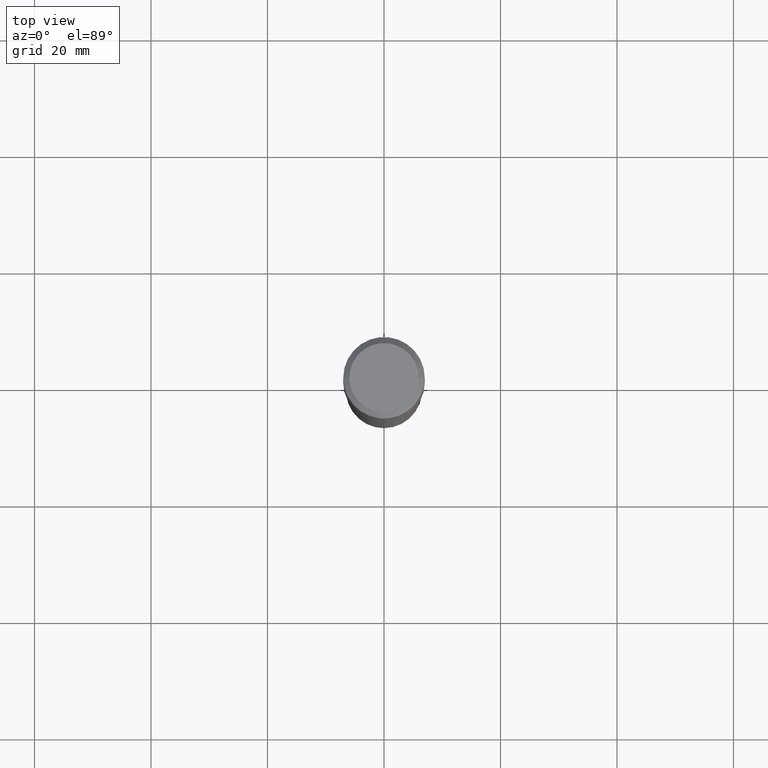
[diagram: clean part render]
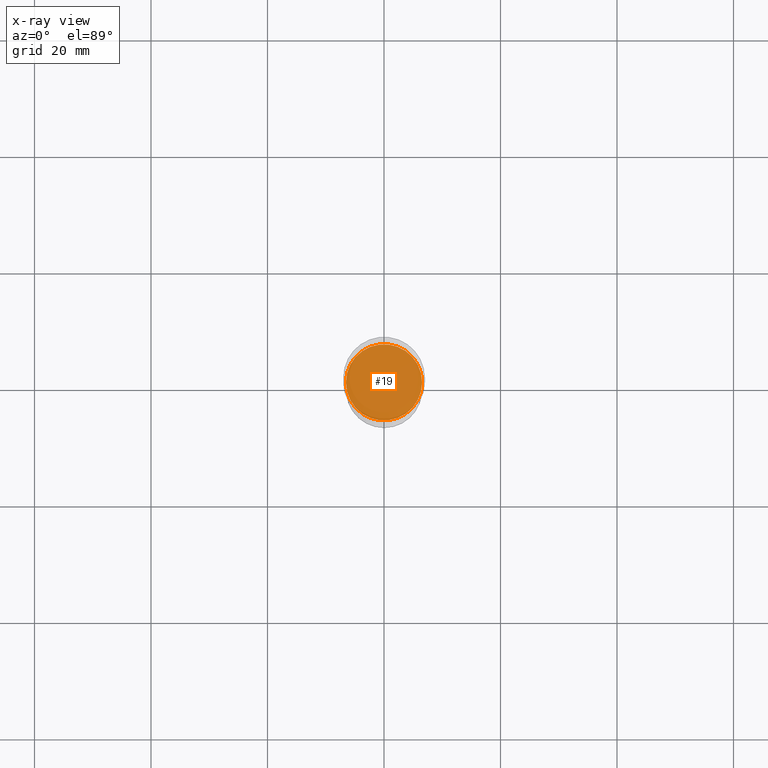
[diagram: x-ray — body ghosted, one internal face saturated and labeled with its STEP entity id]
A machine part, top view, then the same camera in x-ray: the body is ghosted and one INTERNAL B-rep face — a face not visible from any outside direction — is saturated and labeled: STEP entity #19.
In plain terms, the highlighted planar face has unit normal (-0, 0, 1).
Its self-contained STEP definition (entity closure, byte-faithful):
#14 = AXIS2_PLACEMENT_3D ( 'NONE', #27, #138, #441 ) ;
#17 = CARTESIAN_POINT ( 'NONE',  ( 5.897312994011132876E-29, -4.496242839264289535E-15, -1.850499999999999812 ) ) ;
#19 = ADVANCED_FACE ( 'NONE', ( #127 ), #424, .F. ) ;
#27 = CARTESIAN_POINT ( 'NONE',  ( 4.525340025845594497E-29, -6.460986217529239510E-15, -1.850499999999999590 ) ) ;
#31 = AXIS2_PLACEMENT_3D ( 'NONE', #90, #98, #310 ) ;
#78 = ORIENTED_EDGE ( 'NONE', *, *, #375, .F. ) ;
#90 = CARTESIAN_POINT ( 'NONE',  ( 4.525340025845594497E-29, -6.460986217529239510E-15, -1.850499999999999590 ) ) ;
#98 = DIRECTION ( 'NONE',  ( -2.445468806185136597E-29, 3.491481338843145583E-15, 1.000000000000000000 ) ) ;
#127 = FACE_OUTER_BOUND ( 'NONE', #250, .T. ) ;
#131 = DIRECTION ( 'NONE',  ( 1.000000000000000000, -6.982962677686265922E-15, 4.876176775795935793E-29 ) ) ;
#138 = DIRECTION ( 'NONE',  ( -2.445468806185136597E-29, 3.491481338843145583E-15, 1.000000000000000000 ) ) ;
#142 = CIRCLE ( 'NONE', #14, 0.2572999999999999732 ) ;
#154 = EDGE_CURVE ( 'NONE', #252, #434, #142, .T. ) ;
#235 = DIRECTION ( 'NONE',  ( -2.438088387897960049E-29, 3.491481338843145188E-15, 1.000000000000000000 ) ) ;
#238 = CIRCLE ( 'NONE', #31, 0.2572999999999999732 ) ;
#250 = EDGE_LOOP ( 'NONE', ( #349, #78 ) ) ;
#252 = VERTEX_POINT ( 'NONE', #408 ) ;
#310 = DIRECTION ( 'NONE',  ( 1.000000000000000000, -6.982962677686266711E-15, 0.000000000000000000 ) ) ;
#349 = ORIENTED_EDGE ( 'NONE', *, *, #154, .F. ) ;
#375 = EDGE_CURVE ( 'NONE', #434, #252, #238, .T. ) ;
#396 = AXIS2_PLACEMENT_3D ( 'NONE', #17, #235, #131 ) ;
#407 = CARTESIAN_POINT ( 'NONE',  ( -0.2572999999999999732, -4.630110531244390721E-15, -1.850499999999999590 ) ) ;
#408 = CARTESIAN_POINT ( 'NONE',  ( 0.2572999999999999732, -8.257702514497915670E-15, -1.850499999999999590 ) ) ;
#424 = PLANE ( 'NONE',  #396 ) ;
#434 = VERTEX_POINT ( 'NONE', #407 ) ;
#441 = DIRECTION ( 'NONE',  ( 1.000000000000000000, -6.982962677686266711E-15, 0.000000000000000000 ) ) ;